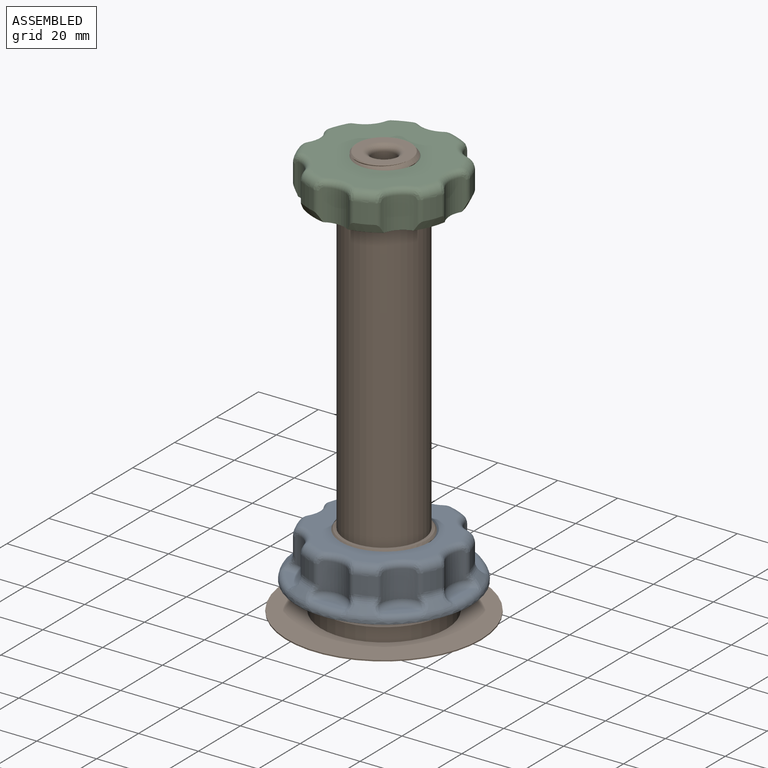
[diagram: assembled view]
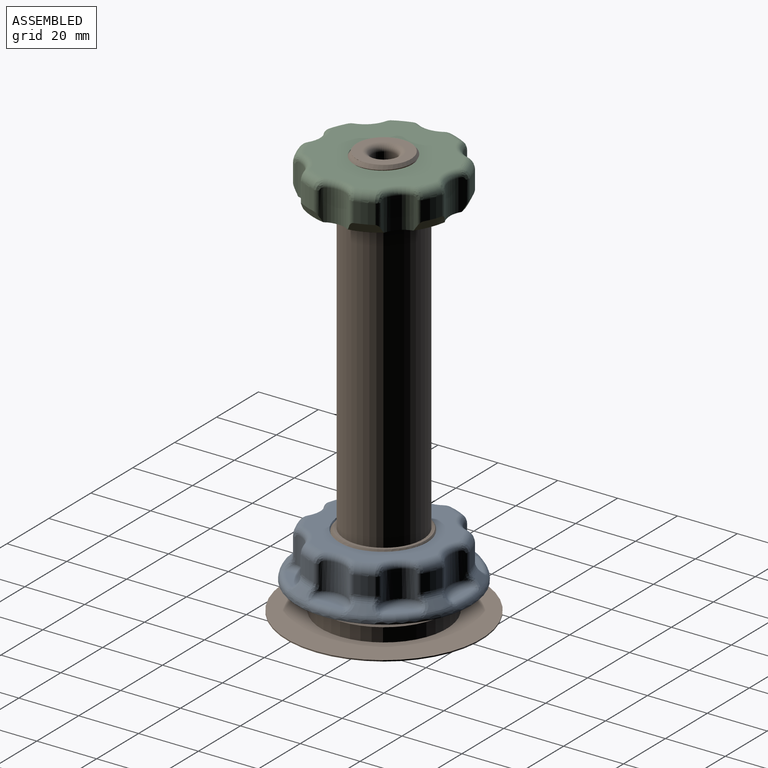
[diagram: assembled view, second angle]
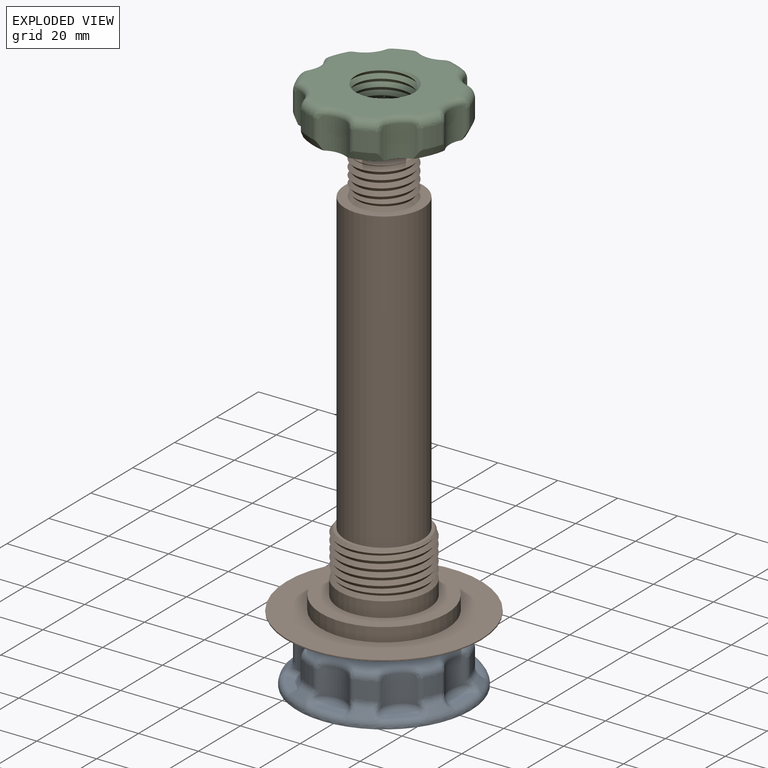
[diagram: exploded view]
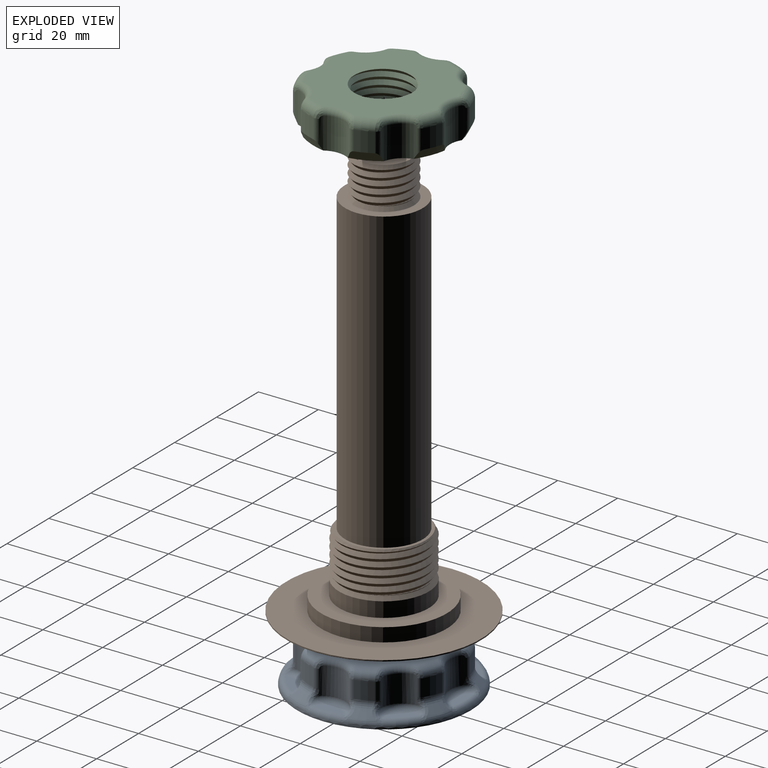
[diagram: exploded view, second angle]
ASSEMBLY  parts=3 mates=2
PART A: 181 faces, bbox 62.8x62.8x18.6 mm
  f0: cone r=25.88mm half-angle=45deg, axis (0,0,-1), area 18.2mm2, adj f12,f34,f119,f131
  f1: cone r=25.88mm half-angle=45deg, axis (0,0,-1), area 18.2mm2, adj f9,f34,f75,f165
  f2: cone r=25.88mm half-angle=45deg, axis (0,0,-1), area 18.2mm2, adj f8,f34,f67,f89
  f3: cone r=25.88mm half-angle=45deg, axis (0,0,-1), area 18.2mm2, adj f11,f34,f105,f111
  f4: cone r=25.88mm half-angle=45deg, axis (0,0,-1), area 18.2mm2, adj f10,f34,f81,f97
  f5: cone r=25.88mm half-angle=45deg, axis (0,0,-1), area 18.2mm2, adj f13,f34,f123,f145
  f6: cone r=25.88mm half-angle=45deg, axis (0,0,-1), area 18.2mm2, adj f14,f34,f137,f159
  f7: cone r=25.88mm half-angle=45deg, axis (0,0,-1), area 18.2mm2, adj f15,f34,f151,f173
  f8: torus R=28mm, axis (0,0,-1), area 12.7mm2, adj f2,f16,f64,f65,f90,f91
  f9: torus R=28mm, axis (0,0,-1), area 12.7mm2, adj f1,f17,f76,f77,f162,f163
  f10: torus R=28mm, axis (0,0,-1), area 12.7mm2, adj f4,f18,f78,f79,f93,f95
  f11: torus R=28mm, axis (0,0,-1), area 12.7mm2, adj f3,f19,f102,f104,f107,f109
  f12: torus R=28mm, axis (0,0,-1), area 12.7mm2, adj f0,f20,f116,f118,f132,f133
  f13: torus R=28mm, axis (0,0,-1), area 12.7mm2, adj f5,f21,f120,f121,f146,f147
  f14: torus R=28mm, axis (0,0,-1), area 12.7mm2, adj f6,f22,f134,f135,f160,f161
  f15: torus R=28mm, axis (0,0,-1), area 12.7mm2, adj f7,f23,f148,f149,f174,f175
  f16: cylinder r=25mm len=5.76mm, axis (0,0,-1), area 34.5mm2, adj f8,f24,f66,f88
  f17: cylinder r=25mm len=5.76mm, axis (0,0,-1), area 34.5mm2, adj f9,f25,f74,f164
  f18: cylinder r=25mm len=5.76mm, axis (0,0,-1), area 34.5mm2, adj f10,f26,f80,f92
  f19: cylinder r=25mm len=5.76mm, axis (0,0,-1), area 34.5mm2, adj f11,f27,f100,f106
  f20: cylinder r=25mm len=5.76mm, axis (0,0,-1), area 34.5mm2, adj f12,f28,f114,f130
  f21: cylinder r=25mm len=5.76mm, axis (0,0,-1), area 34.5mm2, adj f13,f29,f122,f144
  f22: cylinder r=25mm len=5.76mm, axis (0,0,-1), area 34.5mm2, adj f14,f30,f136,f158
  f23: cylinder r=25mm len=5.76mm, axis (0,0,-1), area 34.5mm2, adj f15,f31,f150,f172
  f24: torus R=22mm, axis (0,0,-1), area 31.3mm2, adj f16,f35,f68,f86
  f25: torus R=22mm, axis (0,0,-1), area 31.3mm2, adj f17,f35,f72,f166
  f26: torus R=22mm, axis (0,0,-1), area 31.3mm2, adj f18,f35,f82,f94
  f27: torus R=22mm, axis (0,0,-1), area 31.3mm2, adj f19,f35,f98,f108
  f28: torus R=22mm, axis (0,0,-1), area 31.3mm2, adj f20,f35,f112,f128
  f29: torus R=22mm, axis (0,0,-1), area 31.3mm2, adj f21,f35,f124,f142
  f30: torus R=22mm, axis (0,0,-1), area 31.3mm2, adj f22,f35,f138,f156
  f31: torus R=22mm, axis (0,0,-1), area 31.3mm2, adj f23,f35,f152,f170
  f32: bspline ~35.22x30.5mm, area 706.2mm2, adj f35,f38,f39
  f33: cylinder r=29mm len=58mm, axis (0,0,-1), area 46.9mm2, adj f34,f37
  f34: torus R=26mm, axis (0,0,-1), area 252.6mm2, adj f0,f1,f2,f3,f4,f5,f6,f7
  f35: plane 42.8x42.8mm, normal (0,0,1), area 726.7mm2, adj f24,f25,f26,f27,f28,f29,f30,f31
  f36: cylinder r=17mm len=34mm, axis (0,0,-1), area 299.1mm2, adj f37,f176
  f37: plane 58x58mm, normal (0,0,-1), area 1734.2mm2, adj f33,f36
  f38: bspline ~35.22x30.5mm, area 704.6mm2, adj f32,f35,f39
  f39: cone r=15.25mm half-angle=38.7deg, axis (0,0,-1), area 75mm2, adj f32,f38,f177
  f40: plane 7x7mm, normal (0,0,1), area 20.2mm2, adj f60,f169
  f41: cylinder r=8mm len=9mm, axis (0,0,-1), area 96.3mm2, adj f60,f162,f164,f166,f168,f170,f172,f174
  f42: plane 9.78x2.97mm, normal (0,0,1), area 20.2mm2, adj f59,f155
  f43: cylinder r=8mm len=10.69mm, axis (0,0,-1), area 96.3mm2, adj f59,f148,f150,f152,f154,f156,f158,f160
  f44: plane 7x7mm, normal (0,0,1), area 20.2mm2, adj f58,f141
  f45: cylinder r=8mm len=9mm, axis (0,0,-1), area 96.3mm2, adj f58,f134,f136,f138,f140,f142,f144,f146
  f46: plane 9.78x2.97mm, normal (0,0,1), area 20.2mm2, adj f57,f127
  f47: cylinder r=8mm len=10.69mm, axis (0,0,-1), area 96.3mm2, adj f57,f120,f122,f124,f126,f128,f130,f132
  f48: plane 7x7mm, normal (0,0,1), area 20.2mm2, adj f56,f115
  f49: cylinder r=8mm len=9mm, axis (0,0,-1), area 96.3mm2, adj f56,f106,f107,f108,f110,f112,f114,f116
  f50: plane 9.78x2.97mm, normal (0,0,1), area 20.2mm2, adj f63,f101
  f51: cylinder r=8mm len=10.69mm, axis (0,0,-1), area 96.3mm2, adj f63,f92,f93,f94,f96,f98,f100,f102
  f52: plane 7x7mm, normal (0,0,1), area 20.2mm2, adj f62,f85
  f53: cylinder r=8mm len=9mm, axis (0,0,-1), area 96.3mm2, adj f62,f78,f80,f82,f84,f86,f88,f90
  f54: plane 9.78x2.97mm, normal (0,0,1), area 20.2mm2, adj f61,f71
  f55: cylinder r=8mm len=10.69mm, axis (0,0,-1), area 96.3mm2, adj f61,f64,f66,f68,f70,f72,f74,f76
  f56: torus R=6mm, axis (0,0,-1), area 41.6mm2, adj f48,f49,f109,f111,f113,f117,f118,f119
  f57: torus R=6mm, axis (0,0,-1), area 41.6mm2, adj f46,f47,f121,f123,f125,f129,f131,f133
  f58: torus R=6mm, axis (0,0,-1), area 41.6mm2, adj f44,f45,f135,f137,f139,f143,f145,f147
  f59: torus R=6mm, axis (0,0,-1), area 41.6mm2, adj f42,f43,f149,f151,f153,f157,f159,f161
  f60: torus R=6mm, axis (0,0,-1), area 41.6mm2, adj f40,f41,f163,f165,f167,f171,f173,f175
  f61: torus R=6mm, axis (0,0,-1), area 41.6mm2, adj f54,f55,f65,f67,f69,f73,f75,f77
  f62: torus R=6mm, axis (0,0,-1), area 41.6mm2, adj f52,f53,f79,f81,f83,f87,f89,f91
  f63: torus R=6mm, axis (0,0,-1), area 41.6mm2, adj f50,f51,f95,f97,f99,f103,f104,f105
  f64: bspline ~4.13x2.65mm, area 3.6mm2, adj f8,f55,f65,f66
  f65: bspline ~2.77x2.41mm, area 2mm2, adj f8,f61,f64,f67
  f66: cylinder r=2mm len=5.76mm, axis (0,0,1), area 10.8mm2, adj f16,f55,f64,f68
  f67: bspline ~3.06x2.78mm, area 4.9mm2, adj f2,f61,f65,f69
  f68: bspline ~3.8x3.4mm, area 7.6mm2, adj f24,f55,f66,f70
  f69: bspline ~2.36x2.2mm, area 3.9mm2, adj f34,f61,f67,f71
  f70: torus R=10mm, axis (0,0,-1), area 29.4mm2, adj f35,f55,f68,f72
  f71: torus R=26.97mm, axis (0,0,-1), area 27.2mm2, adj f34,f54,f69,f73
  f72: bspline ~3.8x3.4mm, area 7.6mm2, adj f25,f55,f70,f74
  f73: bspline ~2.24x2.12mm, area 3.9mm2, adj f34,f61,f71,f75
  f74: cylinder r=2mm len=5.76mm, axis (0,0,-1), area 10.8mm2, adj f17,f55,f72,f76
  f75: bspline ~3.16x2.89mm, area 4.9mm2, adj f1,f61,f73,f77
  f76: bspline ~4.23x2.72mm, area 3.6mm2, adj f9,f55,f74,f77
  f77: bspline ~2.77x2.41mm, area 2mm2, adj f9,f61,f75,f76
  f78: bspline ~4.13x2.43mm, area 3.6mm2, adj f10,f53,f79,f80
  f79: bspline ~2.93x2.41mm, area 2mm2, adj f10,f62,f78,f81
  f80: cylinder r=2mm len=5.76mm, axis (0,0,1), area 10.8mm2, adj f18,f53,f78,f82
  f81: bspline ~2.99x2.78mm, area 4.9mm2, adj f4,f62,f79,f83
  f82: bspline ~3.62x3.18mm, area 7.6mm2, adj f26,f53,f80,f84
  f83: bspline ~2.59x2.31mm, area 3.9mm2, adj f34,f62,f81,f85
  f84: torus R=10mm, axis (0,0,-1), area 29.4mm2, adj f35,f53,f82,f86
  f85: torus R=26.97mm, axis (0,0,-1), area 27.2mm2, adj f34,f52,f83,f87
  f86: bspline ~3.8x3.57mm, area 7.6mm2, adj f24,f53,f84,f88
  f87: bspline ~2.45x2.25mm, area 3.9mm2, adj f34,f62,f85,f89
  f88: cylinder r=2mm len=5.76mm, axis (0,0,-1), area 10.8mm2, adj f16,f53,f86,f90
  f89: bspline ~3.07x2.89mm, area 4.9mm2, adj f2,f62,f87,f91
  f90: bspline ~4.23x2.49mm, area 3.6mm2, adj f8,f53,f88,f91
  f91: bspline ~2.58x2.16mm, area 2mm2, adj f8,f62,f89,f90
  f92: cylinder r=2mm len=5.76mm, axis (0,0,-1), area 10.8mm2, adj f18,f51,f93,f94
  f93: bspline ~4.23x2.72mm, area 3.6mm2, adj f10,f51,f92,f95
  f94: bspline ~3.8x3.4mm, area 7.6mm2, adj f26,f51,f92,f96
  f95: bspline ~2.77x2.41mm, area 2mm2, adj f10,f63,f93,f97
  f96: torus R=10mm, axis (0,0,-1), area 29.4mm2, adj f35,f51,f94,f98
  f97: bspline ~3.16x2.89mm, area 4.9mm2, adj f4,f63,f95,f99
  f98: bspline ~3.8x3.4mm, area 7.6mm2, adj f27,f51,f96,f100
  f99: bspline ~2.24x2.12mm, area 3.9mm2, adj f34,f63,f97,f101
  f100: cylinder r=2mm len=5.76mm, axis (0,0,1), area 10.8mm2, adj f19,f51,f98,f102
  f101: torus R=26.97mm, axis (0,0,-1), area 27.2mm2, adj f34,f50,f99,f103
  f102: bspline ~4.13x2.65mm, area 3.6mm2, adj f11,f51,f100,f104
  f103: bspline ~2.36x2.2mm, area 3.9mm2, adj f34,f63,f101,f105
  f104: bspline ~2.77x2.41mm, area 2mm2, adj f11,f63,f102,f105
  f105: bspline ~3.06x2.78mm, area 4.9mm2, adj f3,f63,f103,f104
  f106: cylinder r=2mm len=5.76mm, axis (0,0,-1), area 10.8mm2, adj f19,f49,f107,f108
  f107: bspline ~4.23x2.49mm, area 3.6mm2, adj f11,f49,f106,f109
  f108: bspline ~3.8x3.57mm, area 7.6mm2, adj f27,f49,f106,f110
  f109: bspline ~2.58x2.16mm, area 2mm2, adj f11,f56,f107,f111
  f110: torus R=10mm, axis (0,0,-1), area 29.4mm2, adj f35,f49,f108,f112
  f111: bspline ~3.07x2.89mm, area 4.9mm2, adj f3,f56,f109,f113
  f112: bspline ~3.62x3.18mm, area 7.6mm2, adj f28,f49,f110,f114
  f113: bspline ~2.45x2.25mm, area 3.9mm2, adj f34,f56,f111,f115
  f114: cylinder r=2mm len=5.76mm, axis (0,0,1), area 10.8mm2, adj f20,f49,f112,f116
  f115: torus R=26.97mm, axis (0,0,-1), area 27.2mm2, adj f34,f48,f113,f117
  f116: bspline ~4.13x2.43mm, area 3.6mm2, adj f12,f49,f114,f118
  f117: bspline ~2.59x2.31mm, area 3.9mm2, adj f34,f56,f115,f119
  f118: bspline ~2.93x2.41mm, area 2mm2, adj f12,f56,f116,f119
  f119: bspline ~2.99x2.78mm, area 4.9mm2, adj f0,f56,f117,f118
  f120: bspline ~4.13x2.65mm, area 3.6mm2, adj f13,f47,f121,f122
  f121: bspline ~2.77x2.41mm, area 2mm2, adj f13,f57,f120,f123
  f122: cylinder r=2mm len=5.76mm, axis (0,0,1), area 10.8mm2, adj f21,f47,f120,f124
  f123: bspline ~3.06x2.78mm, area 4.9mm2, adj f5,f57,f121,f125
  f124: bspline ~3.8x3.4mm, area 7.6mm2, adj f29,f47,f122,f126
  f125: bspline ~2.36x2.2mm, area 3.9mm2, adj f34,f57,f123,f127
  f126: torus R=10mm, axis (0,0,-1), area 29.4mm2, adj f35,f47,f124,f128
  f127: torus R=26.97mm, axis (0,0,-1), area 27.2mm2, adj f34,f46,f125,f129
  f128: bspline ~3.8x3.4mm, area 7.6mm2, adj f28,f47,f126,f130
  f129: bspline ~2.24x2.12mm, area 3.9mm2, adj f34,f57,f127,f131
  f130: cylinder r=2mm len=5.76mm, axis (0,0,-1), area 10.8mm2, adj f20,f47,f128,f132
  f131: bspline ~3.16x2.89mm, area 4.9mm2, adj f0,f57,f129,f133
  f132: bspline ~4.23x2.72mm, area 3.6mm2, adj f12,f47,f130,f133
  f133: bspline ~2.77x2.41mm, area 2mm2, adj f12,f57,f131,f132
  f134: bspline ~4.13x2.43mm, area 3.6mm2, adj f14,f45,f135,f136
  f135: bspline ~2.93x2.41mm, area 2mm2, adj f14,f58,f134,f137
  f136: cylinder r=2mm len=5.76mm, axis (0,0,1), area 10.8mm2, adj f22,f45,f134,f138
  f137: bspline ~2.99x2.78mm, area 4.9mm2, adj f6,f58,f135,f139
  f138: bspline ~3.62x3.18mm, area 7.6mm2, adj f30,f45,f136,f140
  f139: bspline ~2.59x2.31mm, area 3.9mm2, adj f34,f58,f137,f141
  f140: torus R=10mm, axis (0,0,-1), area 29.4mm2, adj f35,f45,f138,f142
  f141: torus R=26.97mm, axis (0,0,-1), area 27.2mm2, adj f34,f44,f139,f143
  f142: bspline ~3.8x3.57mm, area 7.6mm2, adj f29,f45,f140,f144
  f143: bspline ~2.45x2.25mm, area 3.9mm2, adj f34,f58,f141,f145
  f144: cylinder r=2mm len=5.76mm, axis (0,0,-1), area 10.8mm2, adj f21,f45,f142,f146
  f145: bspline ~3.07x2.89mm, area 4.9mm2, adj f5,f58,f143,f147
  f146: bspline ~4.23x2.49mm, area 3.6mm2, adj f13,f45,f144,f147
  f147: bspline ~2.58x2.16mm, area 2mm2, adj f13,f58,f145,f146
  f148: bspline ~4.13x2.65mm, area 3.6mm2, adj f15,f43,f149,f150
  f149: bspline ~2.77x2.41mm, area 2mm2, adj f15,f59,f148,f151
  f150: cylinder r=2mm len=5.76mm, axis (0,0,1), area 10.8mm2, adj f23,f43,f148,f152
  f151: bspline ~3.06x2.78mm, area 4.9mm2, adj f7,f59,f149,f153
  f152: bspline ~3.8x3.4mm, area 7.6mm2, adj f31,f43,f150,f154
  f153: bspline ~2.36x2.2mm, area 3.9mm2, adj f34,f59,f151,f155
  f154: torus R=10mm, axis (0,0,-1), area 29.4mm2, adj f35,f43,f152,f156
  f155: torus R=26.97mm, axis (0,0,-1), area 27.2mm2, adj f34,f42,f153,f157
  f156: bspline ~3.8x3.4mm, area 7.6mm2, adj f30,f43,f154,f158
  f157: bspline ~2.24x2.12mm, area 3.9mm2, adj f34,f59,f155,f159
  f158: cylinder r=2mm len=5.76mm, axis (0,0,-1), area 10.8mm2, adj f22,f43,f156,f160
  f159: bspline ~3.16x2.89mm, area 4.9mm2, adj f6,f59,f157,f161
  f160: bspline ~4.23x2.72mm, area 3.6mm2, adj f14,f43,f158,f161
  f161: bspline ~2.77x2.41mm, area 2mm2, adj f14,f59,f159,f160
  f162: bspline ~4.13x2.43mm, area 3.6mm2, adj f9,f41,f163,f164
  f163: bspline ~2.93x2.41mm, area 2mm2, adj f9,f60,f162,f165
  f164: cylinder r=2mm len=5.76mm, axis (0,0,1), area 10.8mm2, adj f17,f41,f162,f166
  f165: bspline ~2.99x2.78mm, area 4.9mm2, adj f1,f60,f163,f167
  f166: bspline ~3.62x3.18mm, area 7.6mm2, adj f25,f41,f164,f168
  f167: bspline ~2.59x2.31mm, area 3.9mm2, adj f34,f60,f165,f169
  f168: torus R=10mm, axis (0,0,-1), area 29.4mm2, adj f35,f41,f166,f170
  f169: torus R=26.97mm, axis (0,0,-1), area 27.2mm2, adj f34,f40,f167,f171
  f170: bspline ~3.8x3.57mm, area 7.6mm2, adj f31,f41,f168,f172
  f171: bspline ~2.45x2.25mm, area 3.9mm2, adj f34,f60,f169,f173
  f172: cylinder r=2mm len=5.76mm, axis (0,0,-1), area 10.8mm2, adj f23,f41,f170,f174
  f173: bspline ~3.07x2.89mm, area 4.9mm2, adj f7,f60,f171,f175
  f174: bspline ~4.23x2.49mm, area 3.6mm2, adj f15,f41,f172,f175
  f175: bspline ~2.58x2.16mm, area 2mm2, adj f15,f60,f173,f174
  f176: plane 34x34mm, normal (0,0,-1), area 292.2mm2, adj f36,f178
  f177: plane 30.5x30.5mm, normal (0,0,1), area 350.5mm2, adj f39,f180
  f178: cylinder r=14mm len=28mm, axis (0,0,1), area 246.3mm2, adj f176,f179
  f179: plane 28x28mm, normal (0,0,-1), area 235.6mm2, adj f178,f180
  f180: cylinder r=11mm len=22mm, axis (0,0,-1), area 207.3mm2, adj f177,f179
PART B: 28 faces, bbox 65x65x140.3 mm
  f0: cylinder r=21mm len=42mm, axis (0,0,-1), area 607mm2, adj f19,f26
  f1: plane 18x18mm, normal (0,0,1), area 141.4mm2, adj f9,f10
  f2: plane 8x8mm, normal (0,0,1), area 50.3mm2, adj f3
  f3: torus R=4mm, axis (0,0,-1), area 258.4mm2, adj f2,f4
  f4: cylinder r=8mm len=95.6mm, axis (0,0,-1), area 4805.6mm2, adj f3,f5
  f5: torus R=4mm, axis (0,0,-1), area 39.6mm2, adj f4,f6
  f6: cone r=4.08mm half-angle=11.3deg, axis (0,0,-1), area 739.1mm2, adj f5,f7
  f7: torus R=8mm, axis (0,0,-1), area 20mm2, adj f6,f8
  f8: cylinder r=4mm len=9.6mm, axis (0,0,-1), area 241.4mm2, adj f7,f9
  f9: torus R=6mm, axis (0,0,-1), area 93.3mm2, adj f1,f8
  f10: cone r=9mm half-angle=38.7deg, axis (0,0,-1), area 46.9mm2, adj f1,f13,f14
  f11: cone r=10mm half-angle=38.7deg, axis (0,0,-1), area 95.6mm2, adj f12,f15
  f12: cone r=9mm half-angle=38.7deg, axis (0,0,1), area 46.9mm2, adj f11,f13,f14
  f13: bspline ~23.09x20mm, area 429.6mm2, adj f10,f12,f14
  f14: bspline ~23.09x20mm, area 428.9mm2, adj f10,f12,f13
  f15: plane 26x26mm, normal (0,0,1), area 216.8mm2, adj f11,f16
  f16: cylinder r=13mm len=100mm, axis (0,0,-1), area 8168.1mm2, adj f15,f17
  f17: plane 28x28mm, normal (0,0,1), area 84.8mm2, adj f16,f18
  f18: cone r=14mm half-angle=38.7deg, axis (0,0,-1), area 72.1mm2, adj f17,f23,f24
  f19: plane 42x42mm, normal (0,0,1), area 678.6mm2, adj f0,f20
  f20: cylinder r=15mm len=30mm, axis (0,0,-1), area 471.2mm2, adj f19,f21
  f21: cone r=15mm half-angle=38.7deg, axis (0,0,-1), area 145.8mm2, adj f20,f22
  f22: cone r=14mm half-angle=38.7deg, axis (0,0,1), area 72.1mm2, adj f21,f23,f24
  f23: bspline ~34.64x30mm, area 742.8mm2, adj f18,f22,f24
  f24: bspline ~34.64x30mm, area 743.4mm2, adj f18,f22,f23
  f25: cylinder r=32.5mm len=65mm, axis (0,0,-1), area 81.7mm2, adj f26,f27
  f26: plane 65x65mm, normal (0,0,1), area 1932.9mm2, adj f0,f25
  f27: plane 65x65mm, normal (0,0,-1), area 3318.3mm2, adj f25
PART C: 77 faces, bbox 50.1x50.1x15.9 mm
  f0: cone r=23.5mm half-angle=26.6deg, axis (0,0,1), area 28.7mm2, adj f1,f72,f73,f74,f75,f76
  f1: cylinder r=2mm len=8.04mm, axis (0,0,1), area 13.7mm2, adj f0,f2,f72,f76
  f2: bspline ~3.62x3.18mm, area 7.6mm2, adj f1,f3,f71,f72
  f3: torus R=22mm, axis (0,0,-1), area 31.3mm2, adj f2,f4,f67,f76
  f4: bspline ~3.8x3.4mm, area 7.6mm2, adj f3,f5,f74,f75
  f5: torus R=10mm, axis (0,0,-1), area 29.4mm2, adj f4,f6,f67,f74
  f6: bspline ~3.8x3.4mm, area 7.6mm2, adj f5,f7,f66,f74
  f7: torus R=22mm, axis (0,0,-1), area 31.3mm2, adj f6,f8,f65,f67
  f8: cylinder r=25mm len=6.5mm, axis (0,0,-1), area 39mm2, adj f7,f9,f64,f66
  f9: cone r=23.5mm half-angle=26.6deg, axis (0,0,1), area 28.7mm2, adj f8,f10,f64,f66,f73,f74
  f10: cylinder r=8mm len=10.5mm, axis (0,0,-1), area 109.7mm2, adj f9,f11,f12,f62,f63,f64,f65,f73
  f11: torus R=10mm, axis (0,0,-1), area 29.4mm2, adj f10,f12,f65,f67
  f12: bspline ~3.62x3.18mm, area 7.6mm2, adj f10,f11,f13,f62
  f13: torus R=22mm, axis (0,0,-1), area 31.3mm2, adj f12,f14,f61,f67
  f14: bspline ~3.8x3.4mm, area 7.6mm2, adj f13,f15,f59,f60
  f15: cylinder r=8mm len=10.5mm, axis (0,0,-1), area 109.7mm2, adj f14,f16,f57,f58,f59,f60,f63,f73
  f16: bspline ~3.8x3.4mm, area 7.6mm2, adj f15,f17,f57,f59
  f17: torus R=22mm, axis (0,0,-1), area 31.3mm2, adj f16,f18,f56,f67
  f18: bspline ~3.8x3.57mm, area 7.6mm2, adj f17,f19,f54,f55
  f19: cylinder r=8mm len=10.5mm, axis (0,0,-1), area 109.7mm2, adj f18,f20,f52,f53,f54,f55,f58,f73
  f20: bspline ~3.62x3.18mm, area 7.6mm2, adj f19,f21,f52,f54
  f21: torus R=22mm, axis (0,0,-1), area 31.3mm2, adj f20,f22,f51,f67
  f22: cylinder r=25mm len=6.5mm, axis (0,0,-1), area 39mm2, adj f21,f23,f52,f53
  f23: cylinder r=2mm len=8.04mm, axis (0,0,-1), area 13.7mm2, adj f22,f24,f51,f53
  f24: cylinder r=8mm len=10.5mm, axis (0,0,-1), area 109.7mm2, adj f23,f25,f26,f49,f50,f51,f53,f73
  f25: torus R=10mm, axis (0,0,-1), area 29.4mm2, adj f24,f26,f51,f67
  f26: bspline ~3.8x3.4mm, area 7.6mm2, adj f24,f25,f27,f49
  f27: torus R=22mm, axis (0,0,-1), area 31.3mm2, adj f26,f28,f48,f67
  f28: cylinder r=25mm len=6.5mm, axis (0,0,-1), area 39mm2, adj f27,f29,f49,f50
  f29: cylinder r=2mm len=8.04mm, axis (0,0,-1), area 13.7mm2, adj f28,f30,f48,f50
  f30: cylinder r=8mm len=10.5mm, axis (0,0,-1), area 109.7mm2, adj f29,f31,f32,f46,f47,f48,f50,f73
  f31: torus R=10mm, axis (0,0,-1), area 29.4mm2, adj f30,f32,f48,f67
  f32: bspline ~3.8x3.57mm, area 7.6mm2, adj f30,f31,f33,f46
  f33: torus R=22mm, axis (0,0,-1), area 31.3mm2, adj f32,f34,f45,f67
  f34: cylinder r=25mm len=6.5mm, axis (0,0,-1), area 39mm2, adj f33,f35,f46,f47
  f35: cylinder r=2mm len=8.04mm, axis (0,0,-1), area 13.7mm2, adj f34,f36,f45,f47
  f36: cylinder r=8mm len=10.5mm, axis (0,0,-1), area 109.7mm2, adj f35,f37,f38,f43,f44,f45,f47,f73
  f37: torus R=10mm, axis (0,0,-1), area 29.4mm2, adj f36,f38,f45,f67
  f38: bspline ~3.8x3.4mm, area 7.6mm2, adj f36,f37,f39,f43
  f39: torus R=22mm, axis (0,0,-1), area 31.3mm2, adj f38,f40,f42,f67
  f40: cylinder r=25mm len=6.5mm, axis (0,0,-1), area 39mm2, adj f39,f41,f43,f44
  f41: cylinder r=2mm len=8.04mm, axis (0,0,-1), area 13.7mm2, adj f40,f42,f44,f72
  f42: bspline ~3.8x3.57mm, area 7.6mm2, adj f39,f41,f71,f72
  f43: cylinder r=2mm len=8.04mm, axis (0,0,1), area 13.7mm2, adj f36,f38,f40,f44
  f44: cone r=23.5mm half-angle=26.6deg, axis (0,0,1), area 28.7mm2, adj f36,f40,f41,f43,f72,f73
  f45: bspline ~3.8x3.4mm, area 7.6mm2, adj f33,f35,f36,f37
  f46: cylinder r=2mm len=8.04mm, axis (0,0,1), area 13.7mm2, adj f30,f32,f34,f47
  f47: cone r=23.5mm half-angle=26.6deg, axis (0,0,1), area 28.7mm2, adj f30,f34,f35,f36,f46,f73
  f48: bspline ~3.8x3.57mm, area 7.6mm2, adj f27,f29,f30,f31
  f49: cylinder r=2mm len=8.04mm, axis (0,0,1), area 13.7mm2, adj f24,f26,f28,f50
  f50: cone r=23.5mm half-angle=26.6deg, axis (0,0,1), area 28.7mm2, adj f24,f28,f29,f30,f49,f73
  f51: bspline ~3.8x3.4mm, area 7.6mm2, adj f21,f23,f24,f25
  f52: cylinder r=2mm len=8.04mm, axis (0,0,1), area 13.7mm2, adj f19,f20,f22,f53
  f53: cone r=23.5mm half-angle=26.6deg, axis (0,0,1), area 28.7mm2, adj f19,f22,f23,f24,f52,f73
  f54: torus R=10mm, axis (0,0,-1), area 29.4mm2, adj f18,f19,f20,f67
  f55: cylinder r=2mm len=8.04mm, axis (0,0,-1), area 13.7mm2, adj f18,f19,f56,f58
  f56: cylinder r=25mm len=6.5mm, axis (0,0,-1), area 39mm2, adj f17,f55,f57,f58
  f57: cylinder r=2mm len=8.04mm, axis (0,0,1), area 13.7mm2, adj f15,f16,f56,f58
  f58: cone r=23.5mm half-angle=26.6deg, axis (0,0,1), area 28.7mm2, adj f15,f19,f55,f56,f57,f73
  f59: torus R=10mm, axis (0,0,-1), area 29.4mm2, adj f14,f15,f16,f67
  f60: cylinder r=2mm len=8.04mm, axis (0,0,-1), area 13.7mm2, adj f14,f15,f61,f63
  f61: cylinder r=25mm len=6.5mm, axis (0,0,-1), area 39mm2, adj f13,f60,f62,f63
  f62: cylinder r=2mm len=8.04mm, axis (0,0,1), area 13.7mm2, adj f10,f12,f61,f63
  f63: cone r=23.5mm half-angle=26.6deg, axis (0,0,1), area 28.7mm2, adj f10,f15,f60,f61,f62,f73
  f64: cylinder r=2mm len=8.04mm, axis (0,0,-1), area 13.7mm2, adj f8,f9,f10,f65
  f65: bspline ~3.8x3.57mm, area 7.6mm2, adj f7,f10,f11,f64
  f66: cylinder r=2mm len=8.04mm, axis (0,0,1), area 13.7mm2, adj f6,f8,f9,f74
  f67: plane 43.66x43.66mm, normal (0,0,1), area 1111.5mm2, adj f3,f5,f7,f11,f13,f17,f21,f25
  f68: bspline ~23.67x20.5mm, area 466mm2, adj f67,f69,f70
  f69: cone r=10.25mm half-angle=38.7deg, axis (0,0,-1), area 49.9mm2, adj f68,f70,f73
  f70: bspline ~20.6x20.33mm, area 3.1mm2, adj f67,f68,f69
  f71: torus R=10mm, axis (0,0,-1), area 29.4mm2, adj f2,f42,f67,f72
  f72: cylinder r=8mm len=10.5mm, axis (0,0,-1), area 109.7mm2, adj f0,f1,f2,f41,f42,f44,f71,f73
  f73: plane 46.28x46.28mm, normal (0,0,-1), area 1338.3mm2, adj f0,f9,f10,f15,f19,f24,f30,f36
  f74: cylinder r=8mm len=10.5mm, axis (0,0,-1), area 109.7mm2, adj f0,f4,f5,f6,f9,f66,f73,f75
  f75: cylinder r=2mm len=8.04mm, axis (0,0,-1), area 13.7mm2, adj f0,f4,f74,f76
  f76: cylinder r=25mm len=6.5mm, axis (0,0,-1), area 39mm2, adj f0,f1,f3,f75
PLACE A t=(0,0,10.5)mm
PLACE B at identity fixed
PLACE C t=(0,0,126.25)mm
MATE fastened B.f0 <-> C.f0  axis (0,0,1) through (0,0,126.25)mm
MATE fastened A.f0 <-> B.f0  axis (0,0,-1) through (0,0,10.5)mm
